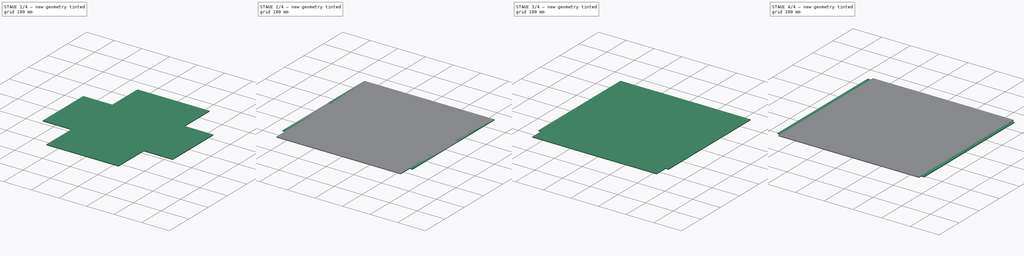
[diagram: build sequence overview — one tinted view per stage of 4, left to right]
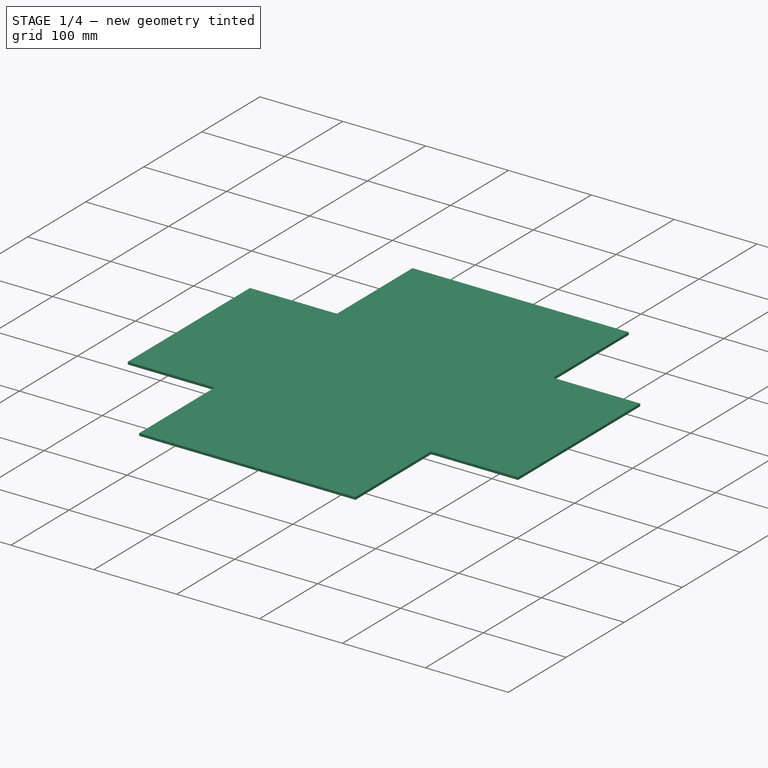
[diagram: stage 1 of 4 — iso view after this stage's code; geometry added in this stage tinted green]
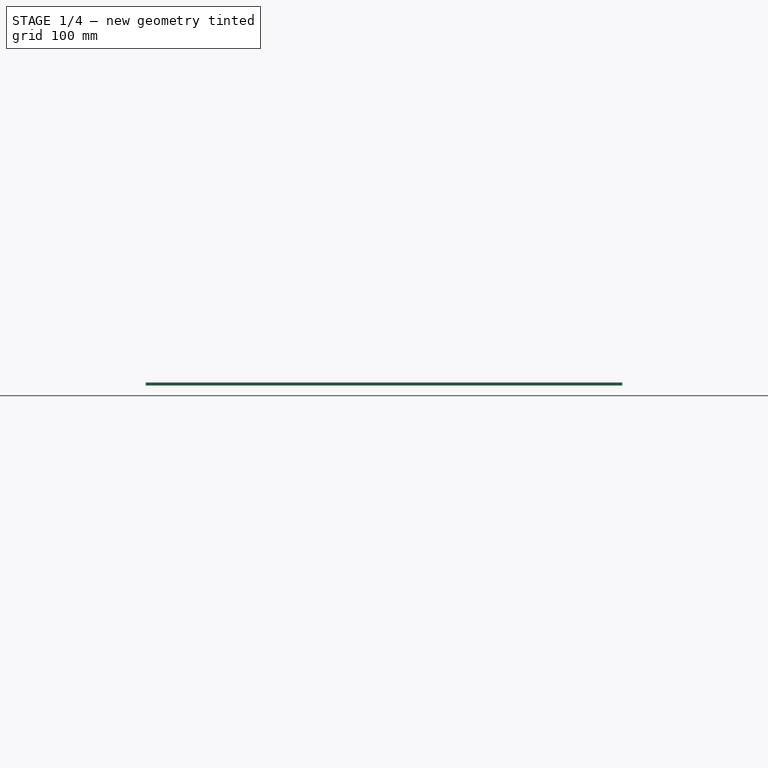
[diagram: stage 1 of 4 — front view after this stage's code; geometry added in this stage tinted green]
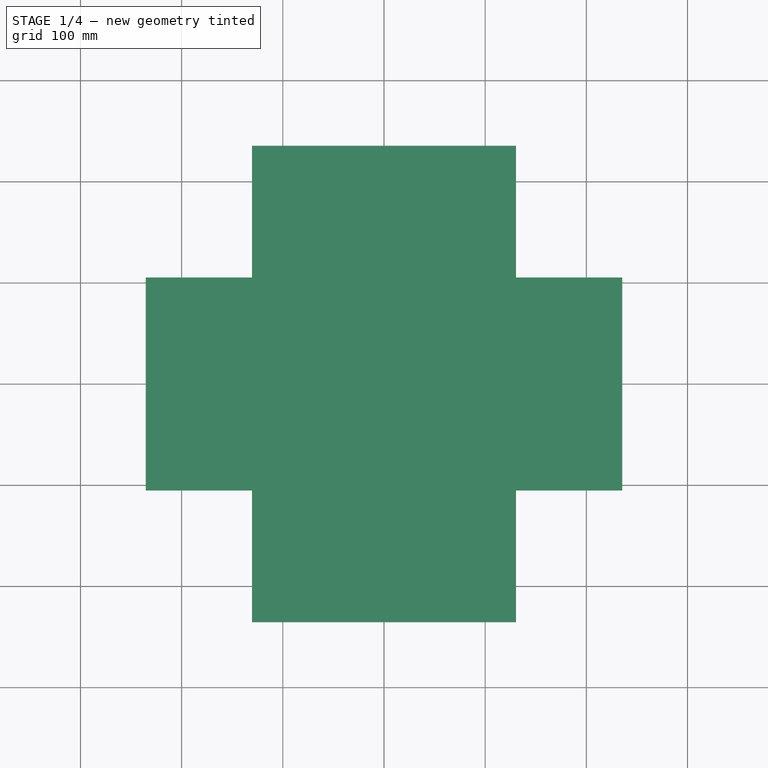
[diagram: stage 1 of 4 — top view after this stage's code; geometry added in this stage tinted green]
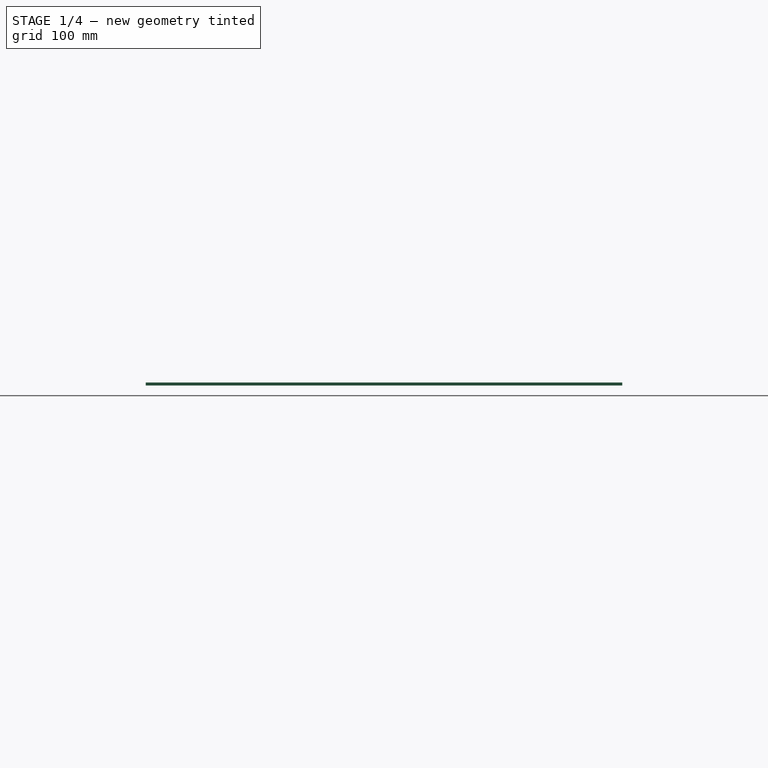
[diagram: stage 1 of 4 — right view after this stage's code; geometry added in this stage tinted green]
FCSTD DOCUMENT  (FreeCAD 1.0R39285 (Git))
Label: plexi
License: All rights reserved
objects: Sketcher::SketchObject×11, PartDesign::Pad×10, PartDesign::Body×10, App::Part×10, PartDesign::Pocket×1
note: 65 computed .brp shape members not serialized (recipe doc carries the construction recipe); baked Part::Feature solids carry a one-line shape summary decoded from their .brp

FEATURE [PartDesign::Body] Body006  label="plexi-electronics-side-261x210.6-body"
  AllowCompound = false
  Group = -> [Sketch007,Pad006]
  Origin = -> Origin013
  Tip = -> Pad006
FEATURE [App::Part] Part006  label="plexi-electronics-side-261x210.6-part"
  Group = -> [Body006]
  Origin = -> Origin012
FEATURE [Sketcher::SketchObject] Sketch008
  ArcFitTolerance = 1e-06
  AttachmentSupport = -> [XY_Plane015]
  FullyConstrained = true
  MakeInternals = false
  MapMode = 5
  sketch-geometry (5):
    g0: LineSegment StartX=-235.5 StartY=-103.8 StartZ=0 EndX=235.5 EndY=-103.8 EndZ=0
    g1: LineSegment StartX=235.5 StartY=-103.8 StartZ=0 EndX=235.5 EndY=103.8 EndZ=0
    g2: LineSegment StartX=235.5 StartY=103.8 StartZ=0 EndX=-235.5 EndY=103.8 EndZ=0
    g3: LineSegment StartX=-235.5 StartY=103.8 StartZ=0 EndX=-235.5 EndY=-103.8 EndZ=0
    g4: GeomPoint [constr] X=0 Y=0 Z=0
  constraints (12):
    c: Coincident(g0,g1)
    c: Coincident(g1,g2)
    c: Coincident(g2,g3)
    c: Coincident(g3,g0)
    c: Horizontal(g0)
    c: Horizontal(g2)
    c: Vertical(g1)
    c: Vertical(g3)
    c: Symmetric(g2,g0,g4)
    c: Distance(g1,g3) = 471
    c: Distance(g0,g2) = 207.6
    c: Coincident(g4,g-1)
FEATURE [PartDesign::Pad] Pad007
  Direction = (0,0,1)
  Length = 3
  Length2 = 10
  Profile = -> Sketch008
  ReferenceAxis = -> Sketch008 [N_Axis]
  Refine = true
  Suppressed = false
  Type = 0
FEATURE [PartDesign::Body] Body007  label="plexi-electronics-top-471x207.6-body"
  AllowCompound = false
  Group = -> [Sketch008,Pad007]
  Origin = -> Origin015
  Tip = -> Pad007
FEATURE [App::Part] Part007  label="plexi-electronics-top-471x207.6-part"
  Group = -> [Body007]
  Origin = -> Origin014
FEATURE [Sketcher::SketchObject] Sketch009
  ArcFitTolerance = 1e-06
  AttachmentSupport = -> [XY_Plane017]
  FullyConstrained = true
  MakeInternals = false
  MapMode = 5
  sketch-geometry (5):
    g0: LineSegment StartX=-235.5 StartY=-105.3 StartZ=0 EndX=235.5 EndY=-105.3 EndZ=0
    g1: LineSegment StartX=235.5 StartY=-105.3 StartZ=0 EndX=235.5 EndY=105.3 EndZ=0
    g2: LineSegment StartX=235.5 StartY=105.3 StartZ=0 EndX=-235.5 EndY=105.3 EndZ=0
    g3: LineSegment StartX=-235.5 StartY=105.3 StartZ=0 EndX=-235.5 EndY=-105.3 EndZ=0
    g4: GeomPoint [constr] X=0 Y=0 Z=0
  constraints (12):
    c: Coincident(g0,g1)
    c: Coincident(g1,g2)
    c: Coincident(g2,g3)
    c: Coincident(g3,g0)
    c: Horizontal(g0)
    c: Horizontal(g2)
    c: Vertical(g1)
    c: Vertical(g3)
    c: Symmetric(g2,g0,g4)
    c: Distance(g1,g3) = 471
    c: Distance(g0,g2) = 210.6
    c: Coincident(g4,g-1)
FEATURE [PartDesign::Pad] Pad008
  Direction = (0,0,1)
  Length = 3
  Length2 = 10
  Profile = -> Sketch009
  ReferenceAxis = -> Sketch009 [N_Axis]
  Refine = true
  Suppressed = false
  Type = 0
FEATURE [PartDesign::Body] Body008  label="plexi-electronics-bottom-471x210.6-body"
  AllowCompound = false
  Group = -> [Sketch009,Pad008]
  Origin = -> Origin017
  Tip = -> Pad008
FEATURE [App::Part] Part008  label="plexi-electronics-bottom-471x210.6-part"
  Group = -> [Body008]
  Origin = -> Origin016
FEATURE [Sketcher::SketchObject] Sketch010
  ArcFitTolerance = 1e-06
  AttachmentSupport = -> [XY_Plane019]
  FullyConstrained = true
  MakeInternals = false
  MapMode = 5
  sketch-geometry (5):
    g0: LineSegment StartX=-130.5 StartY=-235.5 StartZ=0 EndX=130.5 EndY=-235.5 EndZ=0
    g1: LineSegment StartX=130.5 StartY=-235.5 StartZ=0 EndX=130.5 EndY=235.5 EndZ=0
    g2: LineSegment StartX=130.5 StartY=235.5 StartZ=0 EndX=-130.5 EndY=235.5 EndZ=0
    g3: LineSegment StartX=-130.5 StartY=235.5 StartZ=0 EndX=-130.5 EndY=-235.5 EndZ=0
    g4: GeomPoint [constr] X=0 Y=0 Z=0
  constraints (12):
    c: Coincident(g0,g1)
    c: Coincident(g1,g2)
    c: Coincident(g2,g3)
    c: Coincident(g3,g0)
    c: Horizontal(g0)
    c: Horizontal(g2)
    c: Vertical(g1)
    c: Vertical(g3)
    c: Symmetric(g2,g0,g4)
    c: Distance(g1,g3) = 261
    c: Distance(g0,g2) = 471
    c: Coincident(g4,g-1)
FEATURE [PartDesign::Pad] Pad009
  Direction = (0,0,1)
  Length = 3
  Length2 = 10
  Profile = -> Sketch010
  ReferenceAxis = -> Sketch010 [N_Axis]
  Refine = true
  Suppressed = false
  Type = 0
FEATURE [PartDesign::Body] Body009  label="plexi-electronics-front-471x261-body"
  AllowCompound = false
  Group = -> [Sketch010,Pad009]
  Origin = -> Origin019
  Tip = -> Pad009
FEATURE [App::Part] Part009  label="plexi-electronics-front-471x261-part"
  Group = -> [Body009]
  Origin = -> Origin018
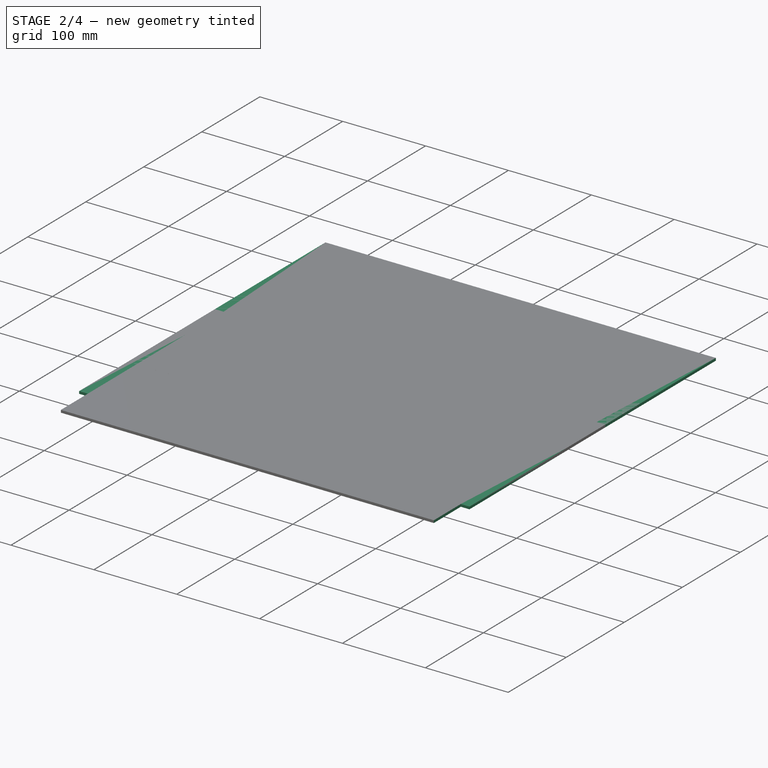
[diagram: stage 2 of 4 — iso view after this stage's code; geometry added in this stage tinted green]
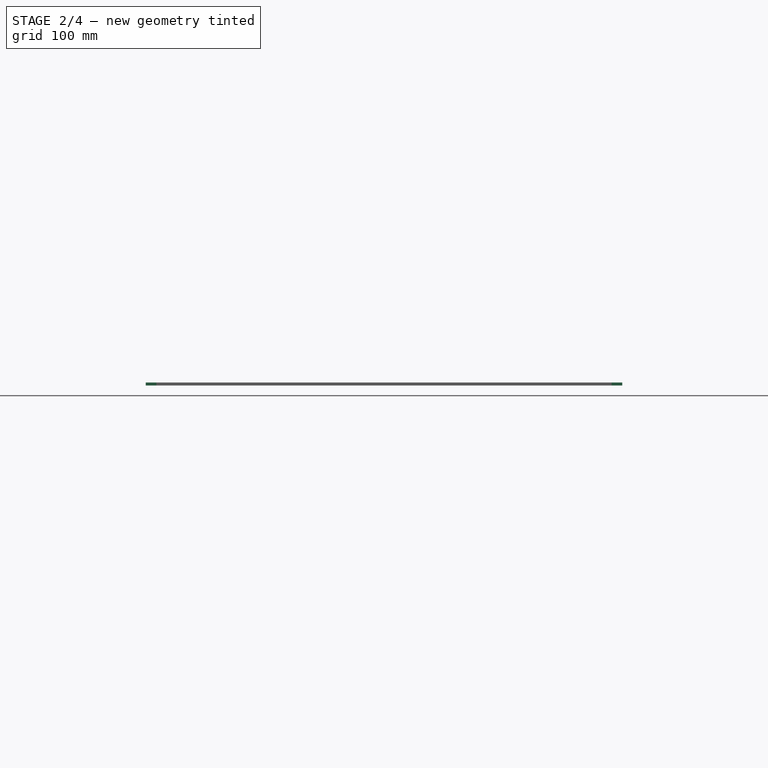
[diagram: stage 2 of 4 — front view after this stage's code; geometry added in this stage tinted green]
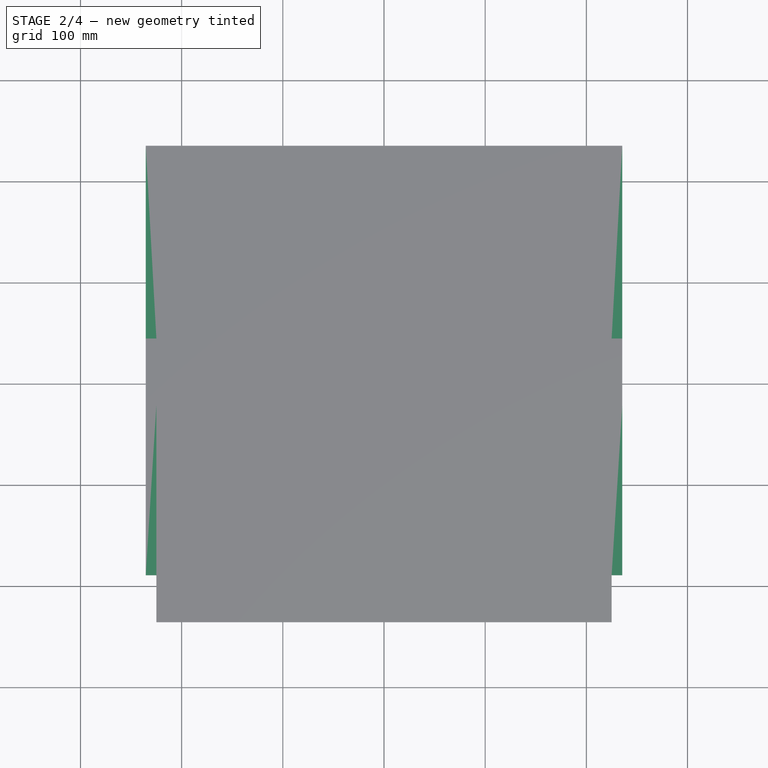
[diagram: stage 2 of 4 — top view after this stage's code; geometry added in this stage tinted green]
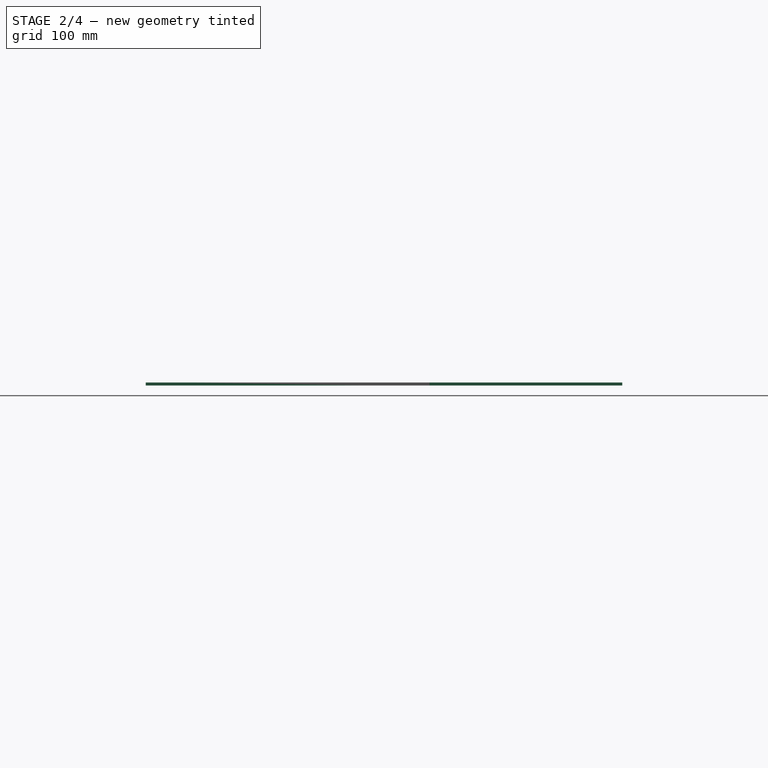
[diagram: stage 2 of 4 — right view after this stage's code; geometry added in this stage tinted green]
FEATURE [PartDesign::Body] Body004  label="plexi-top-471.2x291.2-body"
  AllowCompound = false
  Group = -> [Sketch004,Pad004]
  Origin = -> Origin009
  Tip = -> Pad004
FEATURE [App::Part] Part004  label="plexi-top-471.2x291.2-part"
  Group = -> [Body004]
  Origin = -> Origin008
FEATURE [Sketcher::SketchObject] Sketch005
  ArcFitTolerance = 1e-06
  AttachmentSupport = -> [XY_Plane011]
  FullyConstrained = true
  MakeInternals = false
  MapMode = 5
  sketch-geometry (26):
    g0: LineSegment [constr] StartX=-255 StartY=-255 StartZ=0 EndX=255 EndY=-255 EndZ=0
    g1: LineSegment [constr] StartX=255 StartY=-255 StartZ=0 EndX=255 EndY=255 EndZ=0
    g2: LineSegment [constr] StartX=255 StartY=255 StartZ=0 EndX=-255 EndY=255 EndZ=0
    g3: LineSegment [constr] StartX=-255 StartY=255 StartZ=0 EndX=-255 EndY=-255 EndZ=0
    g4: GeomPoint [constr] X=0 Y=0 Z=0
    g5: LineSegment [constr] StartX=-235.5 StartY=-235.5 StartZ=0 EndX=235.5 EndY=-235.5 EndZ=0
    g6: LineSegment [constr] StartX=235.5 StartY=-235.5 StartZ=0 EndX=235.5 EndY=235.5 EndZ=0
    g7: LineSegment [constr] StartX=235.5 StartY=235.5 StartZ=0 EndX=-235.5 EndY=235.5 EndZ=0
    g8: LineSegment [constr] StartX=-235.5 StartY=235.5 StartZ=0 EndX=-235.5 EndY=-235.5 EndZ=0
    g9: GeomPoint [constr] X=0 Y=0 Z=0
    g10: LineSegment [constr] StartX=-235.5 StartY=-235.5 StartZ=0 EndX=-225 EndY=-235.5 EndZ=0
    g11: LineSegment [constr] StartX=-225 StartY=-235.5 StartZ=0 EndX=-225 EndY=-225 EndZ=0
    g12: LineSegment [constr] StartX=-225 StartY=-225 StartZ=0 EndX=-235.5 EndY=-225 EndZ=0
    g13: LineSegment [constr] StartX=-235.5 StartY=-225 StartZ=0 EndX=-235.5 EndY=-235.5 EndZ=0
    g14: LineSegment [constr] StartX=235.5 StartY=-235.5 StartZ=0 EndX=235.5 EndY=-225 EndZ=0
    g15: LineSegment [constr] StartX=235.5 StartY=-225 StartZ=0 EndX=225 EndY=-225 EndZ=0
    g16: LineSegment [constr] StartX=225 StartY=-225 StartZ=0 EndX=225 EndY=-235.5 EndZ=0
    g17: LineSegment [constr] StartX=225 StartY=-235.5 StartZ=0 EndX=235.5 EndY=-235.5 EndZ=0
    g18: LineSegment StartX=225 StartY=-225 StartZ=0 EndX=235.5 EndY=-225 EndZ=0
    g19: LineSegment StartX=235.5 StartY=-225 StartZ=0 EndX=235.5 EndY=235.5 EndZ=0
    g20: LineSegment StartX=235.5 StartY=235.5 StartZ=0 EndX=-235.5 EndY=235.5 EndZ=0
    g21: LineSegment StartX=-235.5 StartY=235.5 StartZ=0 EndX=-235.5 EndY=-225 EndZ=0
    g22: LineSegment StartX=-235.5 StartY=-225 StartZ=0 EndX=-225 EndY=-225 EndZ=0
    g23: LineSegment StartX=-225 StartY=-225 StartZ=0 EndX=-225 EndY=-235.5 EndZ=0
    g24: LineSegment StartX=-225 StartY=-235.5 StartZ=0 EndX=225 EndY=-235.5 EndZ=0
    g25: LineSegment StartX=225 StartY=-235.5 StartZ=0 EndX=225 EndY=-225 EndZ=0
  constraints (62):
    c: Coincident(g0,g1)
    c: Coincident(g1,g2)
    c: Coincident(g2,g3)
    c: Coincident(g3,g0)
    c: Horizontal(g0)
    c: Horizontal(g2)
    c: Vertical(g1)
    c: Vertical(g3)
    c: Symmetric(g2,g0,g4)
    c: Distance(g1,g3) = 510
    c: Distance(g0,g2) = 510
    c: Coincident(g4,g-1)
    c: Coincident(g5,g6)
    c: Coincident(g6,g7)
    c: Coincident(g7,g8)
    c: Coincident(g8,g5)
    c: Horizontal(g5)
    c: Horizontal(g7)
    c: Vertical(g6)
    c: Vertical(g8)
    c: Symmetric(g7,g5,g9)
    c: Distance(g6,g8) = 471
    c: Distance(g5,g7) = 471
    c: Coincident(g9,g4)
    c: Coincident(g10,g11)
    c: Coincident(g11,g12)
    c: Coincident(g12,g13)
    c: Coincident(g13,g10)
    c: Horizontal(g10)
    c: Horizontal(g12)
    c: Vertical(g11)
    c: Vertical(g13)
    c: Distance(g11,g13) = 10.5
    c: Distance(g10,g12) = 10.5
    c: Coincident(g10,g5)
    c: Coincident(g14,g15)
    c: Coincident(g15,g16)
    c: Coincident(g16,g17)
    c: Coincident(g17,g14)
    c: Vertical(g14)
    c: Vertical(g16)
    c: Horizontal(g15)
    c: Horizontal(g17)
    c: Distance(g14,g16) = 10.5
    c: Distance(g15,g17) = 10.5
    c: Coincident(g14,g5)
    c: Coincident(g18,g15)
    c: Coincident(g18,g14)
    c: Coincident(g19,g14)
    c: Coincident(g19,g6)
    c: Coincident(g20,g6)
    c: Coincident(g20,g7)
    c: Coincident(g21,g7)
    c: Coincident(g21,g12)
    c: Coincident(g22,g12)
    c: Coincident(g22,g11)
    c: Coincident(g23,g11)
    c: Coincident(g23,g10)
    c: Coincident(g24,g10)
    c: Coincident(g24,g16)
    c: Coincident(g25,g16)
    c: Coincident(g25,g15)
FEATURE [PartDesign::Pad] Pad005
  Direction = (0,0,1)
  Length = 3
  Length2 = 10
  Profile = -> Sketch005
  ReferenceAxis = -> Sketch005 [N_Axis]
  Refine = true
  Suppressed = false
  Type = 0
FEATURE [Sketcher::SketchObject] Sketch006
  ArcFitTolerance = 1e-06
  AttachmentSupport = -> [Pad005]
  FullyConstrained = true
  MakeInternals = false
  MapMode = 5
  Placement = pos=(0,0,3) rot=(0,0,1;0rad)
  sketch-geometry (29):
    g0: LineSegment [constr] StartX=-255 StartY=-255 StartZ=0 EndX=255 EndY=-255 EndZ=0
    g1: LineSegment [constr] StartX=255 StartY=-255 StartZ=0 EndX=255 EndY=255 EndZ=0
    g2: LineSegment [constr] StartX=255 StartY=255 StartZ=0 EndX=-255 EndY=255 EndZ=0
    g3: LineSegment [constr] StartX=-255 StartY=255 StartZ=0 EndX=-255 EndY=-255 EndZ=0
    g4: GeomPoint [constr] X=0 Y=0 Z=0
    g5: LineSegment [constr] StartX=-255 StartY=-255 StartZ=0 EndX=-225 EndY=-255 EndZ=0
    g6: LineSegment [constr] StartX=-225 StartY=-255 StartZ=0 EndX=-225 EndY=-21 EndZ=0
    g7: LineSegment [constr] StartX=-225 StartY=-21 StartZ=0 EndX=-255 EndY=-21 EndZ=0
    g8: LineSegment [constr] StartX=-255 StartY=-21 StartZ=0 EndX=-255 EndY=-255 EndZ=0
    g9: LineSegment [constr] StartX=255 StartY=-255 StartZ=0 EndX=255 EndY=-21 EndZ=0
    g10: LineSegment [constr] StartX=255 StartY=-21 StartZ=0 EndX=225 EndY=-21 EndZ=0
    g11: LineSegment [constr] StartX=225 StartY=-21 StartZ=0 EndX=225 EndY=-255 EndZ=0
    g12: LineSegment [constr] StartX=225 StartY=-255 StartZ=0 EndX=255 EndY=-255 EndZ=0
    g13: LineSegment StartX=225 StartY=-21 StartZ=0 EndX=255 EndY=-21 EndZ=0
    g14: LineSegment StartX=255 StartY=-21 StartZ=0 EndX=255 EndY=45 EndZ=0
    g15: LineSegment StartX=255 StartY=45 StartZ=0 EndX=225 EndY=45 EndZ=0
    g16: LineSegment StartX=225 StartY=45 StartZ=0 EndX=225 EndY=-21 EndZ=0
    g17: LineSegment StartX=-255 StartY=-21 StartZ=0 EndX=-225 EndY=-21 EndZ=0
    g18: LineSegment StartX=-225 StartY=-21 StartZ=0 EndX=-225 EndY=45 EndZ=0
    g19: LineSegment StartX=-225 StartY=45 StartZ=0 EndX=-255 EndY=45 EndZ=0
    g20: LineSegment StartX=-255 StartY=45 StartZ=0 EndX=-255 EndY=-21 EndZ=0
    g21: LineSegment StartX=-255 StartY=-255 StartZ=0 EndX=-225 EndY=-255 EndZ=0
    g22: LineSegment StartX=-225 StartY=-255 StartZ=0 EndX=-225 EndY=-189 EndZ=0
    g23: LineSegment StartX=-225 StartY=-189 StartZ=0 EndX=-255 EndY=-189 EndZ=0
    g24: LineSegment StartX=-255 StartY=-189 StartZ=0 EndX=-255 EndY=-255 EndZ=0
    g25: LineSegment StartX=255 StartY=-255 StartZ=0 EndX=255 EndY=-189 EndZ=0
    g26: LineSegment StartX=255 StartY=-189 StartZ=0 EndX=225 EndY=-189 EndZ=0
    g27: LineSegment StartX=225 StartY=-189 StartZ=0 EndX=225 EndY=-255 EndZ=0
    g28: LineSegment StartX=225 StartY=-255 StartZ=0 EndX=255 EndY=-255 EndZ=0
  constraints (78):
    c: Coincident(g0,g1)
    c: Coincident(g1,g2)
    c: Coincident(g2,g3)
    c: Coincident(g3,g0)
    c: Horizontal(g0)
    c: Horizontal(g2)
    c: Vertical(g1)
    c: Vertical(g3)
    c: Symmetric(g2,g0,g4)
    c: Distance(g1,g3) = 510
    c: Distance(g0,g2) = 510
    c: Coincident(g4,g-1)
    c: Coincident(g5,g6)
    c: Coincident(g6,g7)
    c: Coincident(g7,g8)
    c: Coincident(g8,g5)
    c: Horizontal(g5)
    c: Horizontal(g7)
    c: Vertical(g6)
    c: Vertical(g8)
    c: Distance(g6,g8) = 30
    c: Distance(g5,g7) = 234
    c: Coincident(g5,g0)
    c: Coincident(g9,g10)
    c: Coincident(g10,g11)
    c: Coincident(g11,g12)
    c: Coincident(g12,g9)
    c: Vertical(g9)
    c: Vertical(g11)
    c: Horizontal(g10)
    c: Horizontal(g12)
    c: Distance(g9,g11) = 30
    c: Distance(g10,g12) = 234
    c: Coincident(g9,g0)
    c: Coincident(g13,g14)
    c: Coincident(g14,g15)
    c: Coincident(g15,g16)
    c: Coincident(g16,g13)
    c: Horizontal(g13)
    c: Horizontal(g15)
    c: Vertical(g14)
    c: Vertical(g16)
    c: Distance(g13,g15) = 66
    c: Coincident(g13,g10)
    c: PointOnObject(g14,g1)
    c: Coincident(g17,g18)
    c: Coincident(g18,g19)
    c: Coincident(g19,g20)
    c: Coincident(g20,g17)
    c: Horizontal(g17)
    c: Horizontal(g19)
    c: Vertical(g18)
    c: Vertical(g20)
    c: Distance(g18,g20) = 30
    c: Distance(g17,g19) = 66
    c: Coincident(g17,g7)
    c: Coincident(g21,g22)
    c: Coincident(g22,g23)
    c: Coincident(g23,g24)
    c: Coincident(g24,g21)
    c: Horizontal(g21)
    c: Horizontal(g23)
    c: Vertical(g22)
    c: Vertical(g24)
    c: Distance(g21,g23) = 66
    c: Coincident(g21,g0)
    c: PointOnObject(g22,g6)
    c: Coincident(g25,g26)
    c: Coincident(g26,g27)
    c: Coincident(g27,g28)
    c: Coincident(g28,g25)
    c: Vertical(g25)
    c: Vertical(g27)
    c: Horizontal(g26)
    c: Horizontal(g28)
    c: Distance(g26,g28) = 66
    c: Coincident(g25,g0)
    c: PointOnObject(g26,g11)
FEATURE [PartDesign::Pocket] Pocket
  BaseFeature = -> Pad005
  Direction = (0,0,-1)
  Length = 5
  Length2 = 5
  Profile = -> Sketch006
  ReferenceAxis = -> Sketch006 [N_Axis]
  Refine = true
  Suppressed = false
  Type = 0
FEATURE [PartDesign::Body] Body005  label="plexi-back-471x471-body"
  AllowCompound = false
  Group = -> [Sketch005,Pad005,Sketch006,Pocket]
  Origin = -> Origin011
  Tip = -> Pocket
FEATURE [App::Part] Part005  label="plexi-back-471x471-part"
  Group = -> [Body005]
  Origin = -> Origin010
FEATURE [Sketcher::SketchObject] Sketch007
  ArcFitTolerance = 1e-06
  AttachmentSupport = -> [XY_Plane013]
  FullyConstrained = true
  MakeInternals = false
  MapMode = 5
  sketch-geometry (5):
    g0: LineSegment StartX=-130.5 StartY=-105.3 StartZ=0 EndX=130.5 EndY=-105.3 EndZ=0
    g1: LineSegment StartX=130.5 StartY=-105.3 StartZ=0 EndX=130.5 EndY=105.3 EndZ=0
    g2: LineSegment StartX=130.5 StartY=105.3 StartZ=0 EndX=-130.5 EndY=105.3 EndZ=0
    g3: LineSegment StartX=-130.5 StartY=105.3 StartZ=0 EndX=-130.5 EndY=-105.3 EndZ=0
    g4: GeomPoint [constr] X=0 Y=0 Z=0
  constraints (12):
    c: Coincident(g0,g1)
    c: Coincident(g1,g2)
    c: Coincident(g2,g3)
    c: Coincident(g3,g0)
    c: Horizontal(g0)
    c: Horizontal(g2)
    c: Vertical(g1)
    c: Vertical(g3)
    c: Symmetric(g2,g0,g4)
    c: Distance(g1,g3) = 261
    c: Distance(g0,g2) = 210.6
    c: Coincident(g4,g-1)
FEATURE [PartDesign::Pad] Pad006
  Direction = (0,0,1)
  Length = 3
  Length2 = 10
  Profile = -> Sketch007
  ReferenceAxis = -> Sketch007 [N_Axis]
  Refine = true
  Suppressed = false
  Type = 0
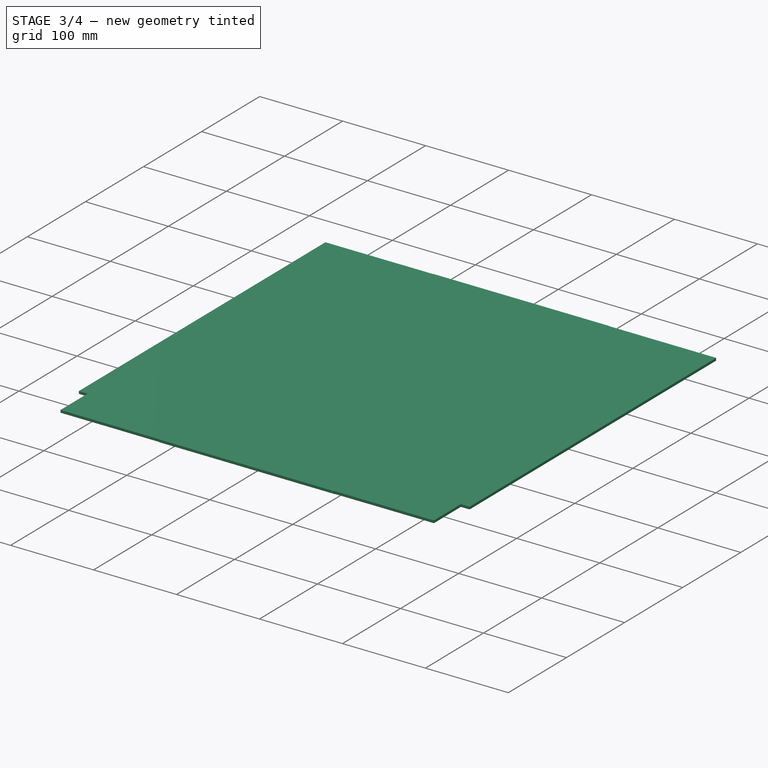
[diagram: stage 3 of 4 — iso view after this stage's code; geometry added in this stage tinted green]
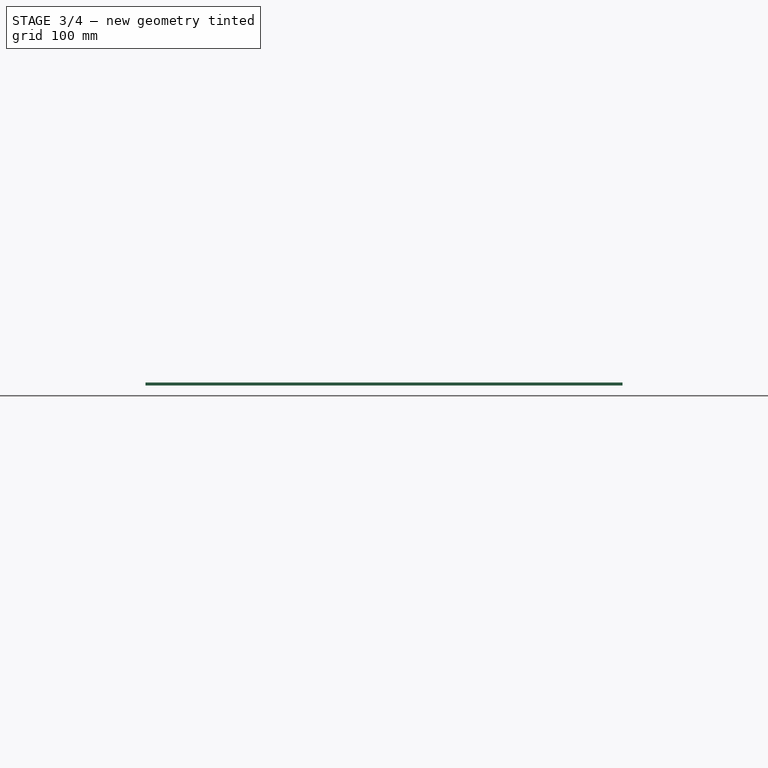
[diagram: stage 3 of 4 — front view after this stage's code; geometry added in this stage tinted green]
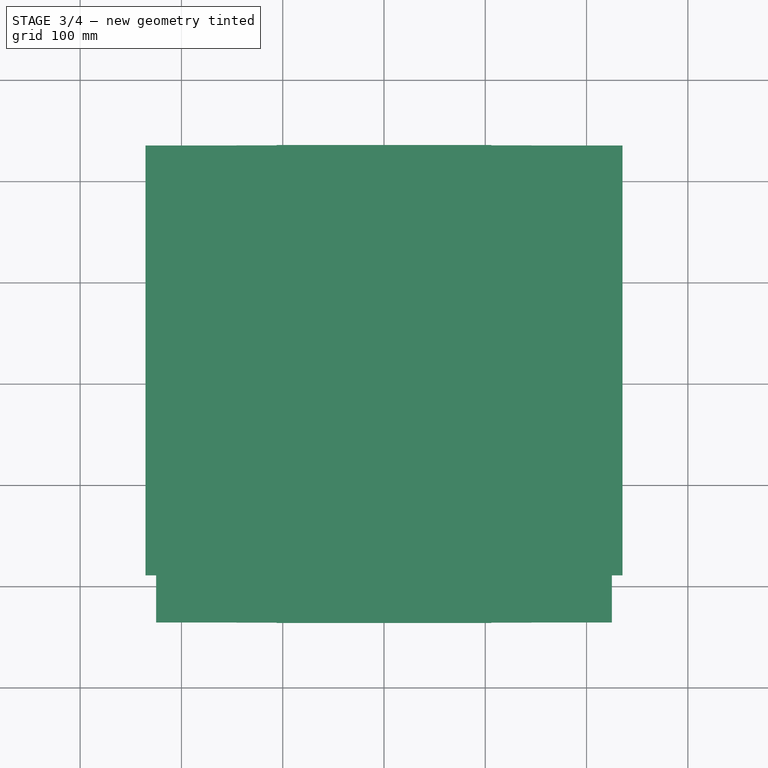
[diagram: stage 3 of 4 — top view after this stage's code; geometry added in this stage tinted green]
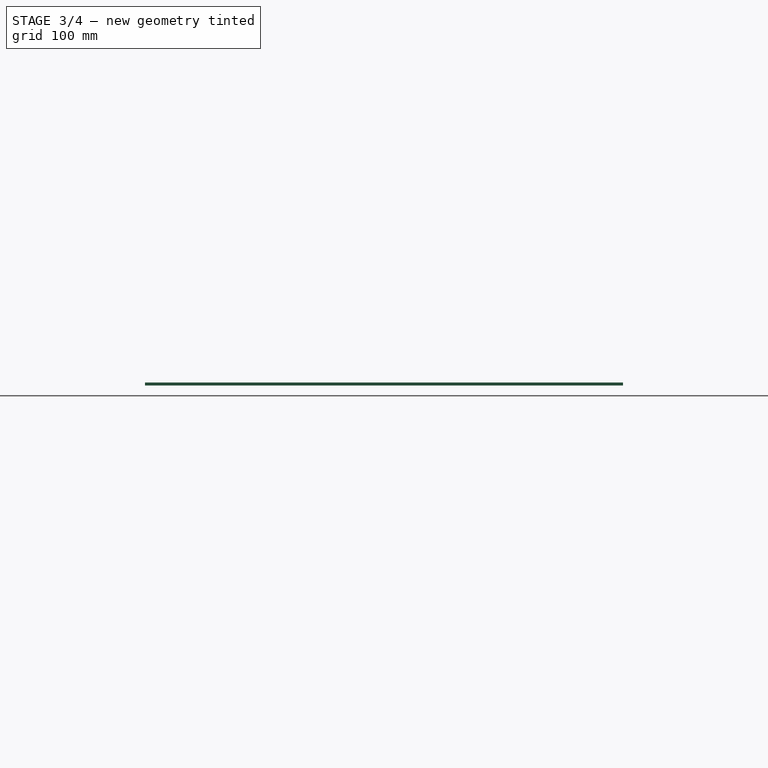
[diagram: stage 3 of 4 — right view after this stage's code; geometry added in this stage tinted green]
FEATURE [PartDesign::Body] Body003  label="plexi-top-471.2x211.2-body"
  AllowCompound = false
  Group = -> [Sketch003,Pad003]
  Origin = -> Origin007
  Tip = -> Pad003
FEATURE [App::Part] Part003  label="plexi-top-471.2x211.2-part"
  Group = -> [Body003]
  Origin = -> Origin006
FEATURE [PartDesign::Pad] Pad
  Direction = (0,0,1)
  Length = 3
  Length2 = 10
  Profile = -> Sketch
  ReferenceAxis = -> Sketch [N_Axis]
  Refine = true
  Suppressed = false
  Type = 0
FEATURE [PartDesign::Body] Body  label="plexi-472x212-body"
  AllowCompound = false
  Group = -> [Sketch,Pad]
  Origin = -> Origin
  Tip = -> Pad
FEATURE [App::Part] Part  label="plexi-472x212-part"
  Group = -> [Body]
  Origin = -> Origin001
FEATURE [PartDesign::Pad] Pad004
  Direction = (0,0,1)
  Length = 3
  Length2 = 10
  Profile = -> Sketch004
  ReferenceAxis = -> Sketch004 [N_Axis]
  Refine = true
  Suppressed = false
  Type = 0
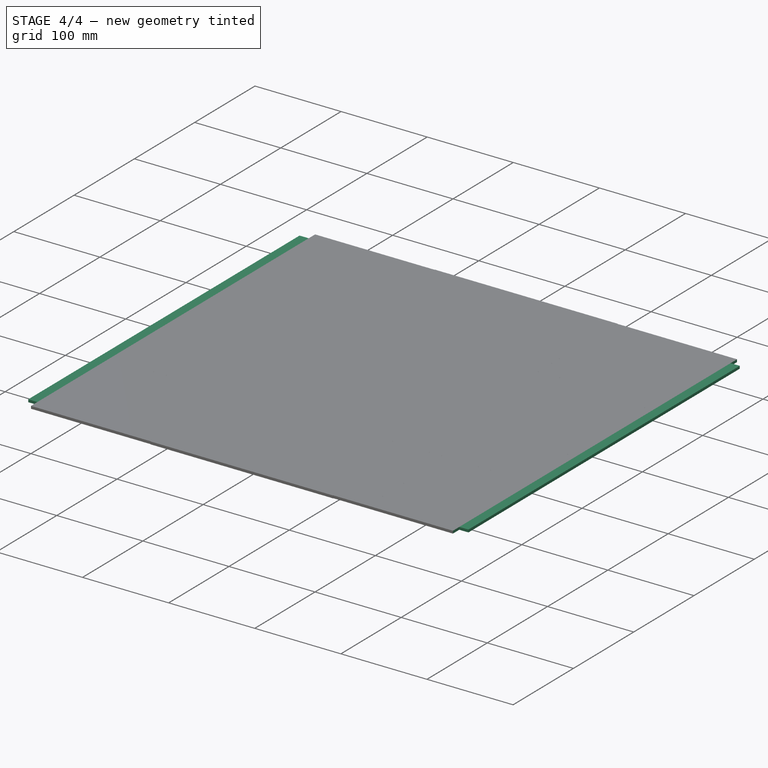
[diagram: stage 4 of 4 — iso view after this stage's code; geometry added in this stage tinted green]
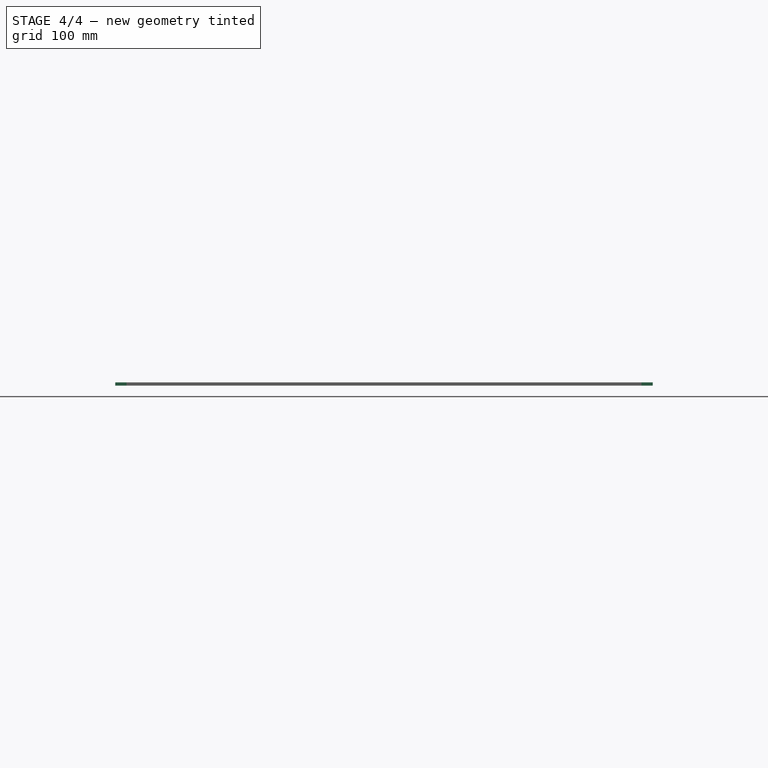
[diagram: stage 4 of 4 — front view after this stage's code; geometry added in this stage tinted green]
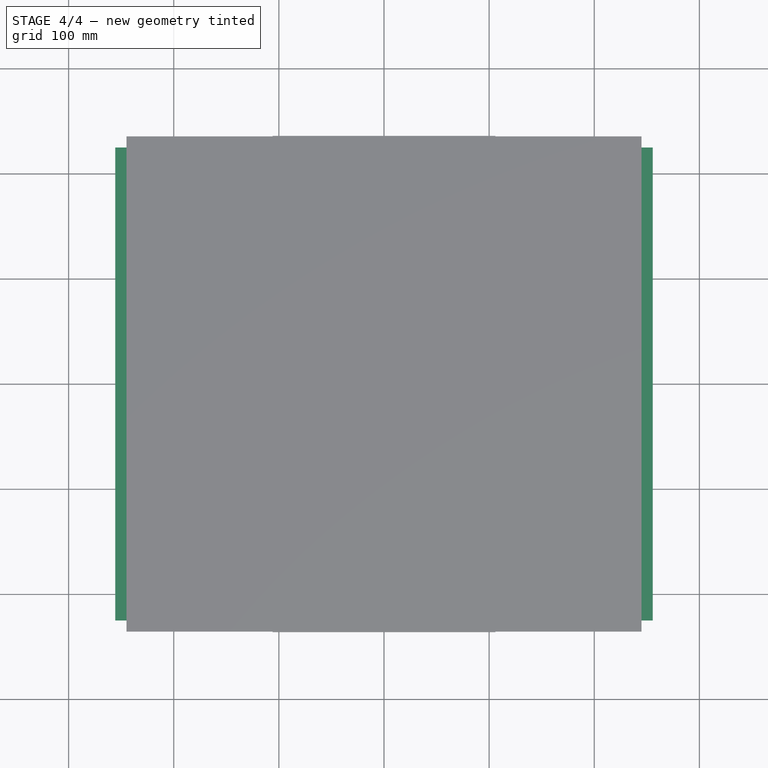
[diagram: stage 4 of 4 — top view after this stage's code; geometry added in this stage tinted green]
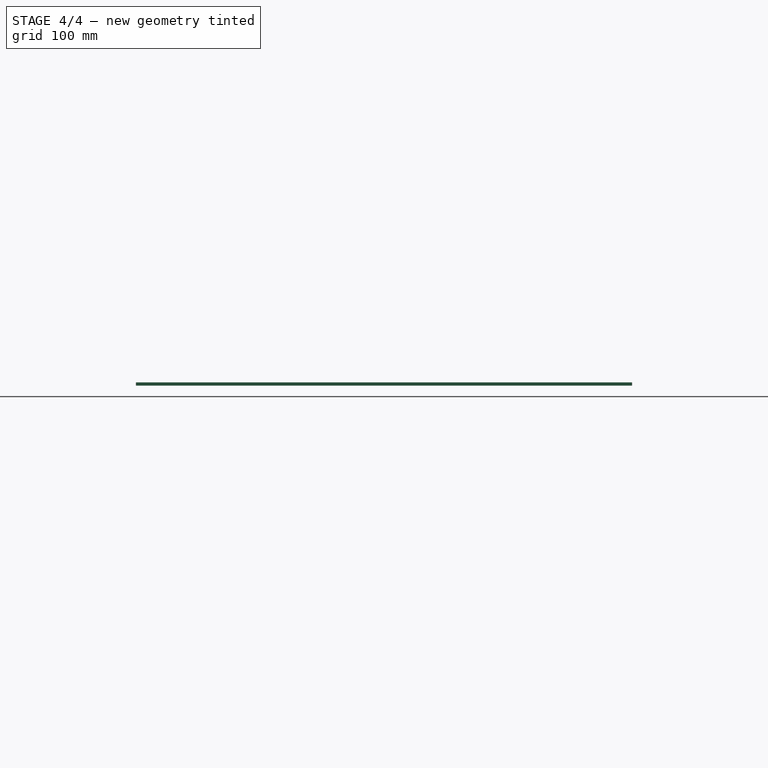
[diagram: stage 4 of 4 — right view after this stage's code; geometry added in this stage tinted green]
FEATURE [Sketcher::SketchObject] Sketch
  ArcFitTolerance = 1e-06
  AttachmentSupport = -> [XY_Plane]
  FullyConstrained = true
  MakeInternals = false
  MapMode = 5
  sketch-geometry (5):
    g0: LineSegment StartX=-106 StartY=-236 StartZ=0 EndX=106 EndY=-236 EndZ=0
    g1: LineSegment StartX=106 StartY=-236 StartZ=0 EndX=106 EndY=236 EndZ=0
    g2: LineSegment StartX=106 StartY=236 StartZ=0 EndX=-106 EndY=236 EndZ=0
    g3: LineSegment StartX=-106 StartY=236 StartZ=0 EndX=-106 EndY=-236 EndZ=0
    g4: GeomPoint [constr] X=-1.3e-15 Y=1e-16 Z=0
  constraints (12):
    c: Coincident(g0,g1)
    c: Coincident(g1,g2)
    c: Coincident(g2,g3)
    c: Coincident(g3,g0)
    c: Horizontal(g0)
    c: Horizontal(g2)
    c: Vertical(g1)
    c: Vertical(g3)
    c: Symmetric(g2,g0,g4)
    c: Distance(g1,g3) = 212
    c: Distance(g0,g2) = 472
    c: Coincident(g4,g-1)
FEATURE [Sketcher::SketchObject] Sketch002
  ArcFitTolerance = 1e-06
  AttachmentSupport = -> [XY_Plane005]
  FullyConstrained = false
  MakeInternals = false
  MapMode = 5
  sketch-geometry (5):
    g0: LineSegment StartX=-235.6 StartY=-235.6 StartZ=0 EndX=235.6 EndY=-235.6 EndZ=0
    g1: LineSegment StartX=235.6 StartY=-235.6 StartZ=0 EndX=235.6 EndY=235.6 EndZ=0
    g2: LineSegment StartX=235.6 StartY=235.6 StartZ=0 EndX=-235.6 EndY=235.6 EndZ=0
    g3: LineSegment StartX=-235.6 StartY=235.6 StartZ=0 EndX=-235.6 EndY=-235.6 EndZ=0
    g4: GeomPoint [constr] X=0 Y=0 Z=0
  constraints (11):
    c: Coincident(g0,g1)
    c: Coincident(g1,g2)
    c: Coincident(g2,g3)
    c: Coincident(g3,g0)
    c: Horizontal(g0)
    c: Horizontal(g2)
    c: Vertical(g1)
    c: Vertical(g3)
    c: Symmetric(g2,g0,g4)
    c: Distance(g1,g3) = 471.2
    c: Distance(g0,g2) = 471.2
FEATURE [PartDesign::Pad] Pad002
  Direction = (0,0,1)
  Length = 3
  Length2 = 10
  Profile = -> Sketch002
  ReferenceAxis = -> Sketch002 [N_Axis]
  Refine = true
  Suppressed = false
  Type = 0
FEATURE [PartDesign::Body] Body002  label="plexi-front-471.2x471.2-body"
  AllowCompound = false
  Group = -> [Sketch002,Pad002]
  Origin = -> Origin005
  Tip = -> Pad002
FEATURE [App::Part] Part002  label="plexi-front-471.2x471.2-part"
  Group = -> [Body002]
  Origin = -> Origin004
FEATURE [Sketcher::SketchObject] Sketch004
  ArcFitTolerance = 1e-06
  AttachmentSupport = -> [XY_Plane009]
  FullyConstrained = true
  MakeInternals = false
  MapMode = 5
  sketch-geometry (5):
    g0: LineSegment StartX=-145.6 StartY=-235.6 StartZ=0 EndX=145.6 EndY=-235.6 EndZ=0
    g1: LineSegment StartX=145.6 StartY=-235.6 StartZ=0 EndX=145.6 EndY=235.6 EndZ=0
    g2: LineSegment StartX=145.6 StartY=235.6 StartZ=0 EndX=-145.6 EndY=235.6 EndZ=0
    g3: LineSegment StartX=-145.6 StartY=235.6 StartZ=0 EndX=-145.6 EndY=-235.6 EndZ=0
    g4: GeomPoint [constr] X=0 Y=0 Z=0
  constraints (12):
    c: Coincident(g0,g1)
    c: Coincident(g1,g2)
    c: Coincident(g2,g3)
    c: Coincident(g3,g0)
    c: Horizontal(g0)
    c: Horizontal(g2)
    c: Vertical(g1)
    c: Vertical(g3)
    c: Symmetric(g2,g0,g4)
    c: Distance(g1,g3) = 291.2
    c: Distance(g0,g2) = 471.2
    c: Coincident(g4,g-1)
FEATURE [Sketcher::SketchObject] Sketch001
  ArcFitTolerance = 1e-06
  AttachmentSupport = -> [XY_Plane003]
  FullyConstrained = true
  MakeInternals = false
  MapMode = 5
  sketch-geometry (38):
    g0: LineSegment [constr] StartX=-275 StartY=-255 StartZ=0 EndX=275 EndY=-255 EndZ=0
    g1: LineSegment [constr] StartX=275 StartY=-255 StartZ=0 EndX=275 EndY=255 EndZ=0
    g2: LineSegment [constr] StartX=275 StartY=255 StartZ=0 EndX=-275 EndY=255 EndZ=0
    g3: LineSegment [constr] StartX=-275 StartY=255 StartZ=0 EndX=-275 EndY=-255 EndZ=0
    g4: GeomPoint [constr] X=0 Y=0 Z=0
    g5: LineSegment [constr] StartX=-255.6 StartY=-235.6 StartZ=0 EndX=255.6 EndY=-235.6 EndZ=0
    g6: LineSegment [constr] StartX=255.6 StartY=-235.6 StartZ=0 EndX=255.6 EndY=235.6 EndZ=0
    g7: LineSegment [constr] StartX=255.6 StartY=235.6 StartZ=0 EndX=-255.6 EndY=235.6 EndZ=0
    g8: LineSegment [constr] StartX=-255.6 StartY=235.6 StartZ=0 EndX=-255.6 EndY=-235.6 EndZ=0
    g9: GeomPoint [constr] X=0 Y=0 Z=0
    g10: LineSegment [constr] StartX=-275 StartY=255 StartZ=0 EndX=-275 EndY=225 EndZ=0
    g11: LineSegment [constr] StartX=-275 StartY=225 StartZ=0 EndX=-245 EndY=225 EndZ=0
    g12: LineSegment [constr] StartX=-245 StartY=225 StartZ=0 EndX=-245 EndY=255 EndZ=0
    g13: LineSegment [constr] StartX=-245 StartY=255 StartZ=0 EndX=-275 EndY=255 EndZ=0
    g14: LineSegment [constr] StartX=275 StartY=255 StartZ=0 EndX=245 EndY=255 EndZ=0
    g15: LineSegment [constr] StartX=245 StartY=255 StartZ=0 EndX=245 EndY=225 EndZ=0
    g16: LineSegment [constr] StartX=245 StartY=225 StartZ=0 EndX=275 EndY=225 EndZ=0
    g17: LineSegment [constr] StartX=275 StartY=225 StartZ=0 EndX=275 EndY=255 EndZ=0
    g18: LineSegment [constr] StartX=275 StartY=-255 StartZ=0 EndX=275 EndY=-225 EndZ=0
    g19: LineSegment [constr] StartX=275 StartY=-225 StartZ=0 EndX=245 EndY=-225 EndZ=0
    g20: LineSegment [constr] StartX=245 StartY=-225 StartZ=0 EndX=245 EndY=-255 EndZ=0
    g21: LineSegment [constr] StartX=245 StartY=-255 StartZ=0 EndX=275 EndY=-255 EndZ=0
    g22: LineSegment [constr] StartX=-275 StartY=-255 StartZ=0 EndX=-245 EndY=-255 EndZ=0
    g23: LineSegment [constr] StartX=-245 StartY=-255 StartZ=0 EndX=-245 EndY=-225 EndZ=0
    g24: LineSegment [constr] StartX=-245 StartY=-225 StartZ=0 EndX=-275 EndY=-225 EndZ=0
    g25: LineSegment [constr] StartX=-275 StartY=-225 StartZ=0 EndX=-275 EndY=-255 EndZ=0
    g26: LineSegment StartX=-245 StartY=225 StartZ=0 EndX=-255.6 EndY=225 EndZ=0
    g27: LineSegment StartX=-255.6 StartY=225 StartZ=0 EndX=-255.6 EndY=-225 EndZ=0
    g28: LineSegment StartX=-255.6 StartY=-225 StartZ=0 EndX=-245 EndY=-225 EndZ=0
    g29: LineSegment StartX=-245 StartY=-225 StartZ=0 EndX=-245 EndY=-235.6 EndZ=0
    g30: LineSegment StartX=-245 StartY=-235.6 StartZ=0 EndX=245 EndY=-235.6 EndZ=0
    g31: LineSegment StartX=245 StartY=-235.6 StartZ=0 EndX=245 EndY=-225 EndZ=0
    g32: LineSegment StartX=245 StartY=-225 StartZ=0 EndX=255.6 EndY=-225 EndZ=0
    g33: LineSegment StartX=255.6 StartY=-225 StartZ=0 EndX=255.6 EndY=225 EndZ=0
    g34: LineSegment StartX=255.6 StartY=225 StartZ=0 EndX=245 EndY=225 EndZ=0
    g35: LineSegment StartX=245 StartY=225 StartZ=0 EndX=245 EndY=235.6 EndZ=0
    g36: LineSegment StartX=245 StartY=235.6 StartZ=0 EndX=-245 EndY=235.6 EndZ=0
    g37: LineSegment StartX=-245 StartY=235.6 StartZ=0 EndX=-245 EndY=225 EndZ=0
  constraints (100):
    c: Coincident(g0,g1)
    c: Coincident(g1,g2)
    c: Coincident(g2,g3)
    c: Coincident(g3,g0)
    c: Horizontal(g0)
    c: Horizontal(g2)
    c: Vertical(g1)
    c: Vertical(g3)
    c: Symmetric(g2,g0,g4)
    c: Distance(g1,g3) = 550
    c: Distance(g0,g2) = 510
    c: Coincident(g4,g-1)
    c: Coincident(g5,g6)
    c: Coincident(g6,g7)
    c: Coincident(g7,g8)
    c: Coincident(g8,g5)
    c: Horizontal(g5)
    c: Horizontal(g7)
    c: Vertical(g6)
    c: Vertical(g8)
    c: Symmetric(g7,g5,g9)
    c: Distance(g6,g8) = 511.2
    c: Distance(g5,g7) = 471.2
    c: Coincident(g9,g4)
    c: Coincident(g10,g11)
    c: Coincident(g11,g12)
    c: Coincident(g12,g13)
    c: Coincident(g13,g10)
    c: Vertical(g10)
    c: Vertical(g12)
    c: Horizontal(g11)
    c: Horizontal(g13)
    c: Distance(g10,g12) = 30
    c: Distance(g11,g13) = 30
    c: Coincident(g10,g2)
    c: Coincident(g14,g15)
    c: Coincident(g15,g16)
    c: Coincident(g16,g17)
    c: Coincident(g17,g14)
    c: Horizontal(g14)
    c: Horizontal(g16)
    c: Vertical(g15)
    c: Vertical(g17)
    c: Distance(g15,g17) = 30
    c: Distance(g14,g16) = 30
    c: Coincident(g14,g1)
    c: Coincident(g18,g19)
    c: Coincident(g19,g20)
    c: Coincident(g20,g21)
    c: Coincident(g21,g18)
    c: Vertical(g18)
    c: Vertical(g20)
    c: Horizontal(g19)
    c: Horizontal(g21)
    c: Distance(g18,g20) = 30
    c: Distance(g19,g21) = 30
    c: Coincident(g18,g0)
    c: Coincident(g22,g23)
    c: Coincident(g23,g24)
    c: Coincident(g24,g25)
    c: Coincident(g25,g22)
    c: Horizontal(g22)
    c: Horizontal(g24)
    c: Vertical(g23)
    c: Vertical(g25)
    c: Distance(g23,g25) = 30
    c: Distance(g22,g24) = 30
    c: Coincident(g22,g0)
    c: Coincident(g26,g11)
    c: PointOnObject(g26,g8)
    c: Horizontal(g26)
    c: Coincident(g27,g26)
    c: PointOnObject(g27,g24)
    c: Vertical(g27)
    c: Coincident(g28,g27)
    c: Coincident(g28,g23)
    c: Coincident(g29,g23)
    c: PointOnObject(g29,g5)
    c: Vertical(g29)
    c: Distance(g30) = 490
    c: Coincident(g30,g29)
    c: PointOnObject(g30,g5)
    c: Coincident(g31,g30)
    c: Coincident(g31,g19)
    c: Distance(g32) = 10.6
    c: Coincident(g32,g19)
    c: PointOnObject(g32,g19)
    c: Distance(g33) = 450
    c: Coincident(g33,g32)
    c: PointOnObject(g33,g6)
    c: Coincident(g34,g33)
    c: Coincident(g34,g15)
    c: Distance(g35) = 10.6
    c: Coincident(g35,g15)
    c: PointOnObject(g35,g15)
    c: Distance(g36) = 490
    c: Coincident(g36,g35)
    c: PointOnObject(g36,g7)
    c: Coincident(g37,g36)
    c: Coincident(g37,g11)
FEATURE [PartDesign::Pad] Pad001
  Direction = (0,0,1)
  Length = 3
  Length2 = 10
  Profile = -> Sketch001
  ReferenceAxis = -> Sketch001 [N_Axis]
  Refine = true
  Suppressed = false
  Type = 0
FEATURE [PartDesign::Body] Body001  label="plexi-bottom-511.2x471.2-body"
  AllowCompound = false
  Group = -> [Sketch001,Pad001]
  Origin = -> Origin003
  Tip = -> Pad001
FEATURE [App::Part] Part001  label="plexi-bottom-511.2x471.2-part"
  Group = -> [Body001]
  Origin = -> Origin002
FEATURE [Sketcher::SketchObject] Sketch003
  ArcFitTolerance = 1e-06
  AttachmentSupport = -> [XY_Plane007]
  FullyConstrained = true
  MakeInternals = false
  MapMode = 5
  sketch-geometry (5):
    g0: LineSegment StartX=-105.6 StartY=-235.6 StartZ=0 EndX=105.6 EndY=-235.6 EndZ=0
    g1: LineSegment StartX=105.6 StartY=-235.6 StartZ=0 EndX=105.6 EndY=235.6 EndZ=0
    g2: LineSegment StartX=105.6 StartY=235.6 StartZ=0 EndX=-105.6 EndY=235.6 EndZ=0
    g3: LineSegment StartX=-105.6 StartY=235.6 StartZ=0 EndX=-105.6 EndY=-235.6 EndZ=0
    g4: GeomPoint [constr] X=0 Y=0 Z=0
  constraints (12):
    c: Coincident(g0,g1)
    c: Coincident(g1,g2)
    c: Coincident(g2,g3)
    c: Coincident(g3,g0)
    c: Horizontal(g0)
    c: Horizontal(g2)
    c: Vertical(g1)
    c: Vertical(g3)
    c: Symmetric(g2,g0,g4)
    c: Distance(g1,g3) = 211.2
    c: Distance(g0,g2) = 471.2
    c: Coincident(g4,g-1)
FEATURE [PartDesign::Pad] Pad003
  Direction = (0,0,1)
  Length = 3
  Length2 = 10
  Profile = -> Sketch003
  ReferenceAxis = -> Sketch003 [N_Axis]
  Refine = true
  Suppressed = false
  Type = 0
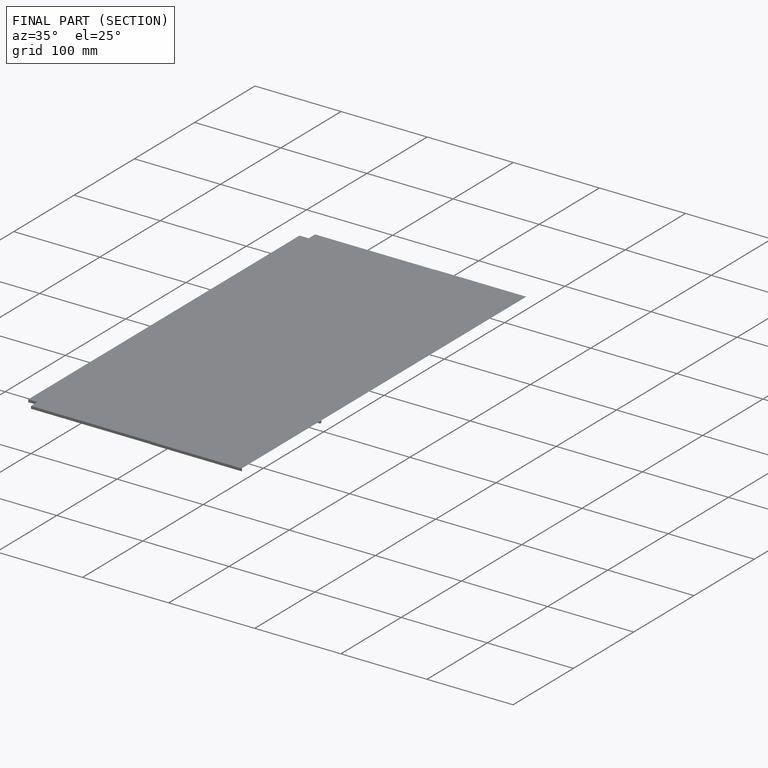
[diagram: finished part — half-section view (interior)]
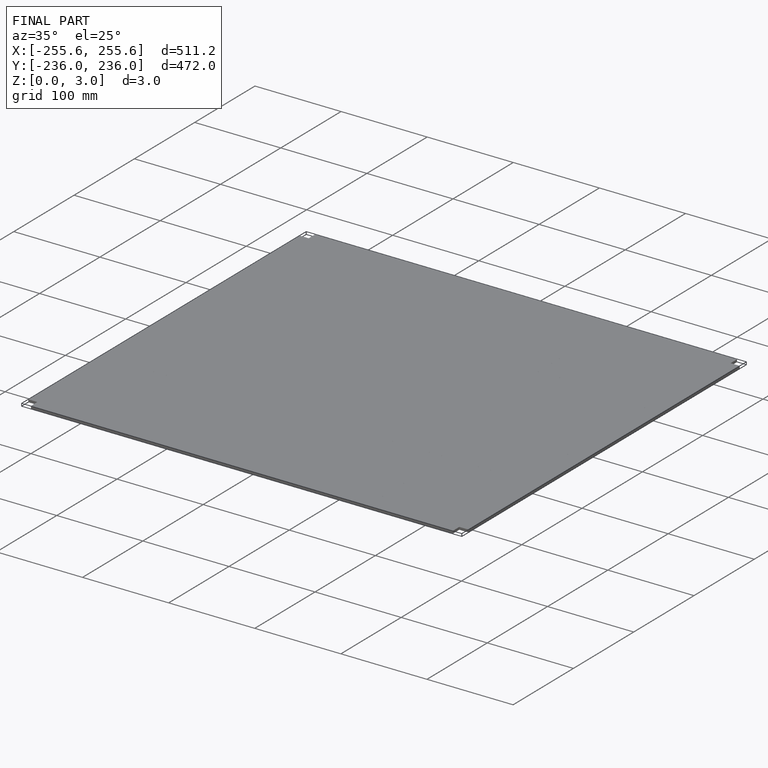
[diagram: finished part — iso view with bounding-box wireframe]
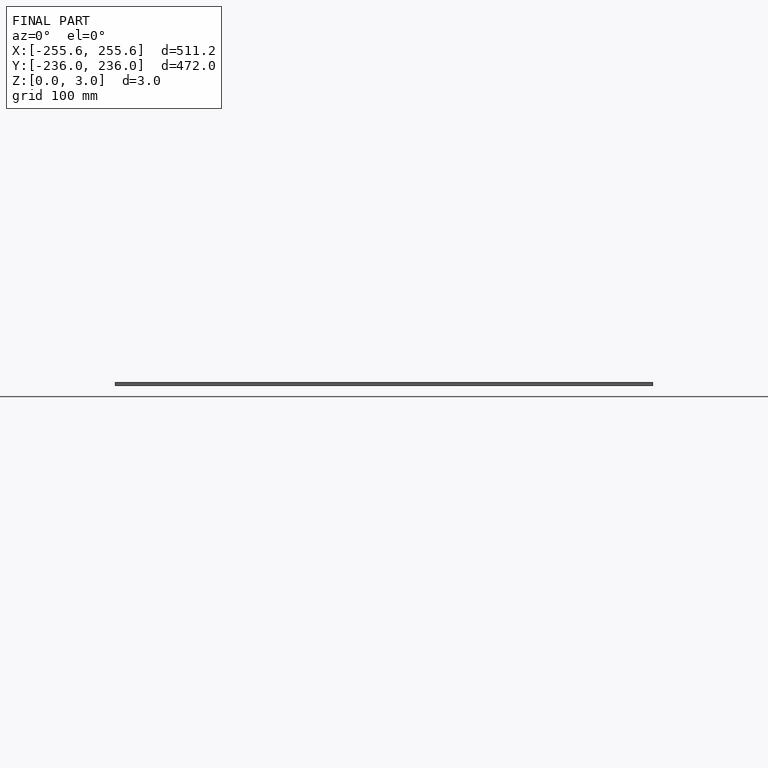
[diagram: finished part — front view with bounding-box wireframe]
